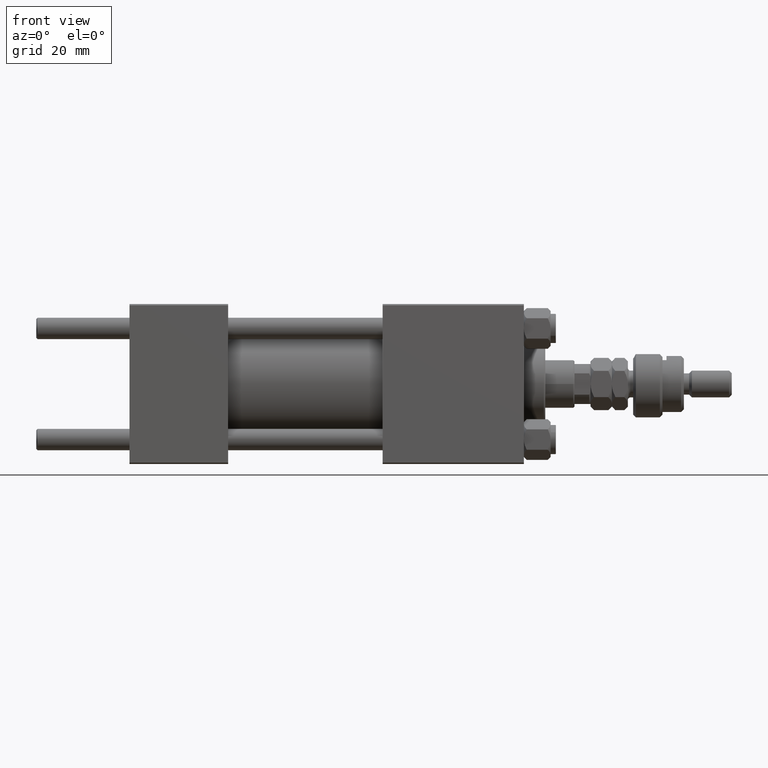
[diagram: clean part render]
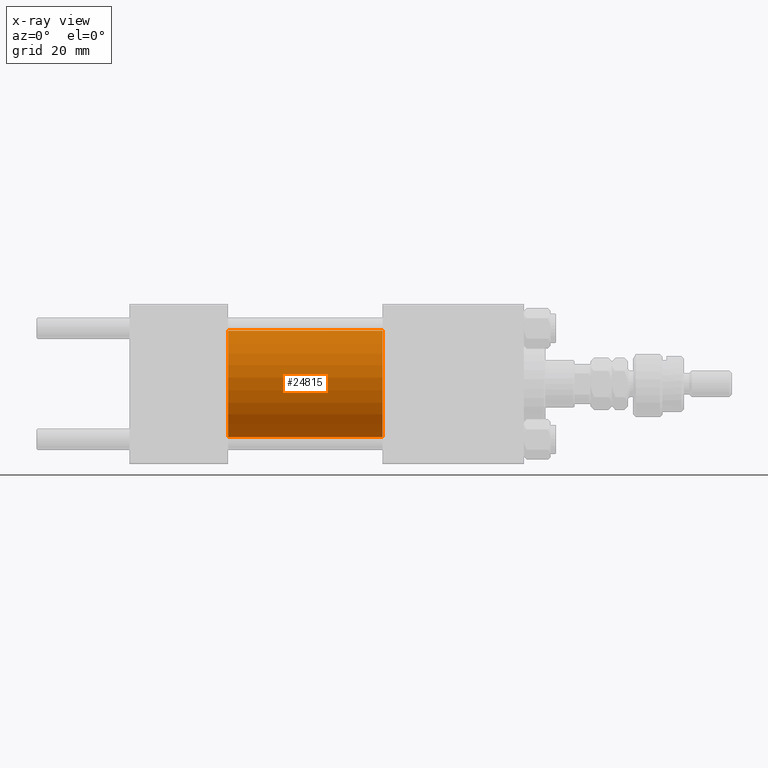
[diagram: x-ray — body ghosted, one internal face saturated and labeled with its STEP entity id]
A machine part, front view, then the same camera in x-ray: the body is ghosted and one INTERNAL B-rep face — a face not visible from any outside direction — is saturated and labeled: STEP entity #24815.
In plain terms, the highlighted cylindrical surface (partial cylindrical patch) has radius 20 mm, axis along (-1, -0, -0).
Its self-contained STEP definition (entity closure, byte-faithful):
#381 = CYLINDRICAL_SURFACE ( 'NONE', #35283, 20.00000000000000000 ) ;
#402 = VERTEX_POINT ( 'NONE', #47732 ) ;
#3170 = AXIS2_PLACEMENT_3D ( 'NONE', #12554, #36801, #32264 ) ;
#4101 = DIRECTION ( 'NONE',  ( -1.000000000000000000, -0.000000000000000000, -0.000000000000000000 ) ) ;
#4104 = DIRECTION ( 'NONE',  ( -1.000000000000000000, -0.000000000000000000, -0.000000000000000000 ) ) ;
#6732 = DIRECTION ( 'NONE',  ( 1.000000000000000000, 0.000000000000000000, 0.000000000000000000 ) ) ;
#7239 = CIRCLE ( 'NONE', #37018, 20.00000000000000000 ) ;
#7849 = CARTESIAN_POINT ( 'NONE',  ( 95.00000000000000000, 0.000000000000000000, 0.000000000000000000 ) ) ;
#9494 = EDGE_LOOP ( 'NONE', ( #15415, #11400, #47074, #42763 ) ) ;
#10697 = CARTESIAN_POINT ( 'NONE',  ( 37.00000000000000000, 0.000000000000000000, 20.00000000000000000 ) ) ;
#11088 = VECTOR ( 'NONE', #13637, 1000.000000000000000 ) ;
#11128 = VERTEX_POINT ( 'NONE', #40404 ) ;
#11400 = ORIENTED_EDGE ( 'NONE', *, *, #49247, .T. ) ;
#11786 = EDGE_CURVE ( 'NONE', #402, #52083, #32598, .T. ) ;
#12554 = CARTESIAN_POINT ( 'NONE',  ( 95.00000000000000000, 0.000000000000000000, 0.000000000000000000 ) ) ;
#13637 = DIRECTION ( 'NONE',  ( -1.000000000000000000, -0.000000000000000000, -0.000000000000000000 ) ) ;
#15415 = ORIENTED_EDGE ( 'NONE', *, *, #37954, .T. ) ;
#16243 = VECTOR ( 'NONE', #4101, 1000.000000000000000 ) ;
#19245 = CARTESIAN_POINT ( 'NONE',  ( 37.00000000000000000, 0.000000000000000000, 0.000000000000000000 ) ) ;
#24815 = ADVANCED_FACE ( 'NONE', ( #36618 ), #381, .F. ) ;
#25544 = VERTEX_POINT ( 'NONE', #45744 ) ;
#26726 = DIRECTION ( 'NONE',  ( 0.000000000000000000, 0.000000000000000000, -1.000000000000000000 ) ) ;
#28870 = DIRECTION ( 'NONE',  ( 0.000000000000000000, 0.000000000000000000, 1.000000000000000000 ) ) ;
#30170 = EDGE_CURVE ( 'NONE', #52083, #25544, #7239, .T. ) ;
#32264 = DIRECTION ( 'NONE',  ( 0.000000000000000000, 0.000000000000000000, -1.000000000000000000 ) ) ;
#32598 = LINE ( 'NONE', #44869, #16243 ) ;
#33765 = CIRCLE ( 'NONE', #3170, 20.00000000000000000 ) ;
#35283 = AXIS2_PLACEMENT_3D ( 'NONE', #7849, #4104, #28870 ) ;
#36618 = FACE_OUTER_BOUND ( 'NONE', #9494, .T. ) ;
#36801 = DIRECTION ( 'NONE',  ( 1.000000000000000000, 0.000000000000000000, 0.000000000000000000 ) ) ;
#37018 = AXIS2_PLACEMENT_3D ( 'NONE', #19245, #6732, #26726 ) ;
#37954 = EDGE_CURVE ( 'NONE', #402, #11128, #33765, .T. ) ;
#39147 = LINE ( 'NONE', #46409, #11088 ) ;
#40404 = CARTESIAN_POINT ( 'NONE',  ( 95.00000000000000000, 2.449293598294706119E-15, -20.00000000000000000 ) ) ;
#42763 = ORIENTED_EDGE ( 'NONE', *, *, #11786, .F. ) ;
#44869 = CARTESIAN_POINT ( 'NONE',  ( 95.00000000000000000, 0.000000000000000000, 20.00000000000000000 ) ) ;
#45744 = CARTESIAN_POINT ( 'NONE',  ( 37.00000000000000000, 2.449293598294706119E-15, -20.00000000000000000 ) ) ;
#46409 = CARTESIAN_POINT ( 'NONE',  ( 95.00000000000000000, 2.449293598294706119E-15, -20.00000000000000000 ) ) ;
#47074 = ORIENTED_EDGE ( 'NONE', *, *, #30170, .F. ) ;
#47732 = CARTESIAN_POINT ( 'NONE',  ( 95.00000000000000000, 0.000000000000000000, 20.00000000000000000 ) ) ;
#49247 = EDGE_CURVE ( 'NONE', #11128, #25544, #39147, .T. ) ;
#52083 = VERTEX_POINT ( 'NONE', #10697 ) ;